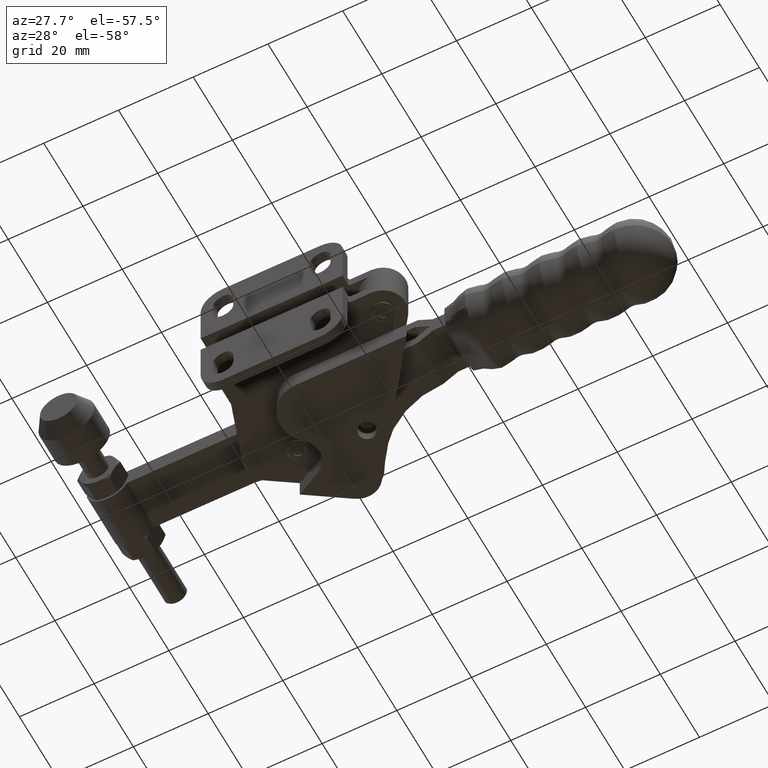
[diagram: clean part render]
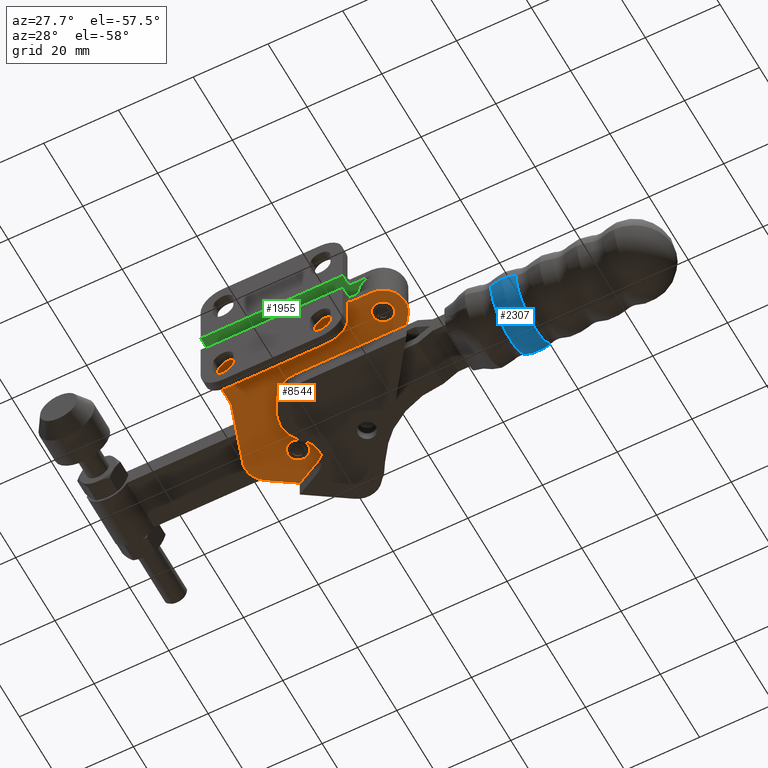
[diagram: same view with three faces highlighted in distinct colors, each labeled with its STEP entity id]
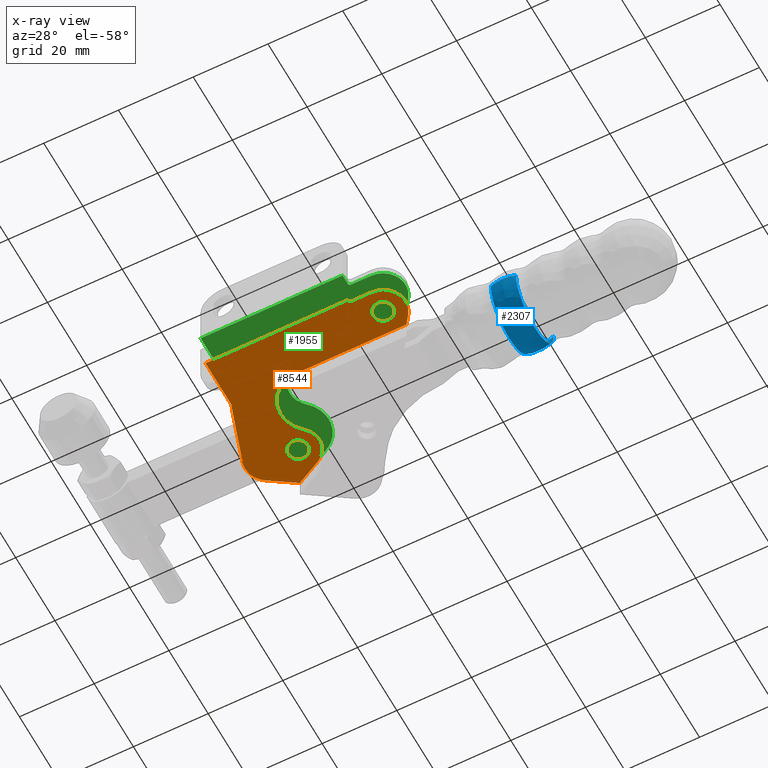
[diagram: x-ray of the same camera — body ghosted, the three highlighted faces saturated]
A machine part, auxiliary view with three faces highlighted in distinct colors.
The next image is the same camera in x-ray (body ghosted, the three faces saturated) — at least one of them is partly hidden behind the body in this view.
Their STEP definitions:

[orange] entity #8544 — the highlighted planar face has unit normal (0, 0, -1).
#67 = CARTESIAN_POINT ( 'NONE',  ( 11.89754065416079200, 29.88245614035053800, -5.000000000000434300 ) ) ;
#74 = ORIENTED_EDGE ( 'NONE', *, *, #1355, .F. ) ;
#231 = EDGE_CURVE ( 'NONE', #2138, #260, #9561, .T. ) ;
#260 = VERTEX_POINT ( 'NONE', #9148 ) ;
#295 = DIRECTION ( 'NONE',  ( 7.850945100192768800E-016, -1.000000000000000000, -4.740511339008573000E-016 ) ) ;
#398 = CIRCLE ( 'NONE', #3742, 2.750000000000000900 ) ;
#429 = AXIS2_PLACEMENT_3D ( 'NONE', #854, #7624, #5211 ) ;
#469 = VECTOR ( 'NONE', #953, 1000.000000000000100 ) ;
#564 = CARTESIAN_POINT ( 'NONE',  ( 37.99999999999975800, 2.499999999999669200, -5.000000000000447600 ) ) ;
#586 = DIRECTION ( 'NONE',  ( 1.000000000000000000, 8.163404592832033000E-016, 0.0000000000000000000 ) ) ;
#688 = DIRECTION ( 'NONE',  ( 0.0000000000000000000, 0.0000000000000000000, 1.000000000000000000 ) ) ;
#769 = CARTESIAN_POINT ( 'NONE',  ( -2.220446049250313100E-013, 15.49999999999968000, -5.000000000000441400 ) ) ;
#790 = EDGE_CURVE ( 'NONE', #5094, #9410, #8884, .T. ) ;
#818 = FACE_OUTER_BOUND ( 'NONE', #8178, .T. ) ;
#840 = CIRCLE ( 'NONE', #7817, 8.500000000000000000 ) ;
#854 = CARTESIAN_POINT ( 'NONE',  ( 0.4999999999997506400, 33.19999999999959100, -5.000000000000432500 ) ) ;
#953 = DIRECTION ( 'NONE',  ( 0.8902000381701521400, -0.4555698541846900900, -2.159593210316295600E-016 ) ) ;
#1090 = VERTEX_POINT ( 'NONE', #4436 ) ;
#1102 = VECTOR ( 'NONE', #10508, 1000.000000000000000 ) ;
#1185 = LINE ( 'NONE', #7086, #9616 ) ;
#1189 = CIRCLE ( 'NONE', #8030, 8.500000000000000000 ) ;
#1285 = ORIENTED_EDGE ( 'NONE', *, *, #6521, .T. ) ;
#1341 = VERTEX_POINT ( 'NONE', #67 ) ;
#1355 = EDGE_CURVE ( 'NONE', #3604, #5853, #6316, .T. ) ;
#1421 = VERTEX_POINT ( 'NONE', #4358 ) ;
#1472 = CIRCLE ( 'NONE', #5915, 5.999999999999984900 ) ;
#1488 = CARTESIAN_POINT ( 'NONE',  ( 38.49999999999973000, 2.699999999999619100, -5.000000000000447600 ) ) ;
#1516 = ORIENTED_EDGE ( 'NONE', *, *, #4561, .F. ) ;
#1604 = EDGE_LOOP ( 'NONE', ( #6942, #6828 ) ) ;
#1608 = CARTESIAN_POINT ( 'NONE',  ( 9.011296403790233000, 23.49999999999962700, -5.000000000000437900 ) ) ;
#1649 = DIRECTION ( 'NONE',  ( -4.588761509564181500E-021, -4.740511339008574900E-016, 1.000000000000000000 ) ) ;
#1717 = DIRECTION ( 'NONE',  ( 1.000000000000000000, 8.673617379884027600E-016, 0.0000000000000000000 ) ) ;
#1937 = CARTESIAN_POINT ( 'NONE',  ( 38.49999999999973000, 2.699999999999619100, -5.000000000000447600 ) ) ;
#1938 = VERTEX_POINT ( 'NONE', #769 ) ;
#2025 = VECTOR ( 'NONE', #5566, 1000.000000000000000 ) ;
#2136 = CIRCLE ( 'NONE', #429, 6.000000000000018700 ) ;
#2138 = VERTEX_POINT ( 'NONE', #5570 ) ;
#2152 = EDGE_CURVE ( 'NONE', #4291, #3604, #6932, .T. ) ;
#2154 = ORIENTED_EDGE ( 'NONE', *, *, #5866, .F. ) ;
#2202 = CARTESIAN_POINT ( 'NONE',  ( -2.220446049250313100E-013, 2.499999999999669200, -5.000000000000394400 ) ) ;
#2215 = ORIENTED_EDGE ( 'NONE', *, *, #790, .F. ) ;
#2269 = LINE ( 'NONE', #3444, #2025 ) ;
#2272 = DIRECTION ( 'NONE',  ( -4.588761509564181500E-021, -4.740511339008574900E-016, 1.000000000000000000 ) ) ;
#2455 = DIRECTION ( 'NONE',  ( 1.000000000000000000, 1.082252302640925000E-014, 4.588761514720927400E-021 ) ) ;
#2511 = DIRECTION ( 'NONE',  ( 4.588761509564181500E-021, 4.740511339008574900E-016, -1.000000000000000000 ) ) ;
#2692 = FACE_BOUND ( 'NONE', #1604, .T. ) ;
#2754 = DIRECTION ( 'NONE',  ( 1.000000000000000000, 7.295867469198080700E-016, 4.588761509936359200E-021 ) ) ;
#2836 = ORIENTED_EDGE ( 'NONE', *, *, #3773, .F. ) ;
#2863 = DIRECTION ( 'NONE',  ( -4.588761509564181500E-021, -4.740511339008574900E-016, 1.000000000000000000 ) ) ;
#2978 = EDGE_CURVE ( 'NONE', #1090, #6116, #3432, .T. ) ;
#3104 = DIRECTION ( 'NONE',  ( 0.0000000000000000000, 0.0000000000000000000, 1.000000000000000000 ) ) ;
#3171 = EDGE_CURVE ( 'NONE', #9052, #1421, #5524, .T. ) ;
#3209 = CIRCLE ( 'NONE', #7414, 6.000000000000018700 ) ;
#3363 = CARTESIAN_POINT ( 'NONE',  ( 17.51129640379023300, 14.99999999999968000, -5.000000000000442300 ) ) ;
#3432 = LINE ( 'NONE', #3619, #5648 ) ;
#3444 = CARTESIAN_POINT ( 'NONE',  ( 37.99999999999973000, 2.699999999999619100, -5.000000000000447600 ) ) ;
#3604 = VERTEX_POINT ( 'NONE', #10515 ) ;
#3619 = CARTESIAN_POINT ( 'NONE',  ( 6.530807365013019200, 44.27063185296642400, -5.000000000000428100 ) ) ;
#3661 = CARTESIAN_POINT ( 'NONE',  ( 8.099999999999745600, 34.19999999999959100, -5.000000000000432500 ) ) ;
#3742 = AXIS2_PLACEMENT_3D ( 'NONE', #10266, #5075, #5971 ) ;
#3773 = EDGE_CURVE ( 'NONE', #7846, #4291, #2269, .T. ) ;
#3829 = EDGE_CURVE ( 'NONE', #9573, #1938, #1185, .T. ) ;
#3898 = VERTEX_POINT ( 'NONE', #1608 ) ;
#4041 = CARTESIAN_POINT ( 'NONE',  ( 47.21114392090386500, 14.99999999999970900, -5.000000000000441400 ) ) ;
#4104 = EDGE_CURVE ( 'NONE', #260, #2138, #398, .T. ) ;
#4252 = VECTOR ( 'NONE', #9232, 999.9999999999998900 ) ;
#4291 = VERTEX_POINT ( 'NONE', #4566 ) ;
#4358 = CARTESIAN_POINT ( 'NONE',  ( 46.74999999999980100, 9.200000000000015300, -5.000000000000002700 ) ) ;
#4364 = DIRECTION ( 'NONE',  ( 0.0000000000000000000, 0.0000000000000000000, 1.000000000000000000 ) ) ;
#4398 = VECTOR ( 'NONE', #7955, 1000.000000000000000 ) ;
#4436 = CARTESIAN_POINT ( 'NONE',  ( 4.112246403578268400, 42.69999999999959800, -5.000000000000429000 ) ) ;
#4491 = DIRECTION ( 'NONE',  ( 1.000000000000000000, 1.206764157201251600E-015, 0.0000000000000000000 ) ) ;
#4534 = LINE ( 'NONE', #9941, #469 ) ;
#4561 = EDGE_CURVE ( 'NONE', #6116, #7093, #2136, .T. ) ;
#4566 = CARTESIAN_POINT ( 'NONE',  ( 37.99999999999973000, 2.699999999999619100, -5.000000000000447600 ) ) ;
#4664 = LINE ( 'NONE', #2202, #4398 ) ;
#4764 = CARTESIAN_POINT ( 'NONE',  ( 43.99999999999979400, 9.200000000000015300, -5.000000000000002700 ) ) ;
#4936 = CIRCLE ( 'NONE', #8604, 5.750000000000025800 ) ;
#5075 = DIRECTION ( 'NONE',  ( 0.0000000000000000000, 0.0000000000000000000, 1.000000000000000000 ) ) ;
#5080 = VERTEX_POINT ( 'NONE', #3363 ) ;
#5094 = VERTEX_POINT ( 'NONE', #7953 ) ;
#5115 = CARTESIAN_POINT ( 'NONE',  ( -5.200205006738595000, 31.32712443521823400, -5.000000000000434300 ) ) ;
#5184 = CARTESIAN_POINT ( 'NONE',  ( -2.220446049250313100E-013, 15.49999999999968000, -5.000000000000441400 ) ) ;
#5204 = VERTEX_POINT ( 'NONE', #8217 ) ;
#5210 = CARTESIAN_POINT ( 'NONE',  ( 41.24999999999979400, 9.200000000000015300, -5.000000000000002700 ) ) ;
#5211 = DIRECTION ( 'NONE',  ( 1.000000000000000000, 1.156482317317867800E-015, 0.0000000000000000000 ) ) ;
#5501 = DIRECTION ( 'NONE',  ( -4.588761509564181500E-021, -4.740511339008574900E-016, 1.000000000000000000 ) ) ;
#5524 = CIRCLE ( 'NONE', #7733, 2.750000000000002700 ) ;
#5566 = DIRECTION ( 'NONE',  ( -1.106493707964985300E-014, 1.000000000000000000, 4.740511339008573000E-016 ) ) ;
#5570 = CARTESIAN_POINT ( 'NONE',  ( 10.84999999999980200, 34.19999999999998200, -5.000000000000002700 ) ) ;
#5592 = DIRECTION ( 'NONE',  ( 1.000000000000000000, 0.0000000000000000000, 0.0000000000000000000 ) ) ;
#5648 = VECTOR ( 'NONE', #9548, 1000.000000000000100 ) ;
#5668 = DIRECTION ( 'NONE',  ( 1.000000000000000000, 0.0000000000000000000, 0.0000000000000000000 ) ) ;
#5782 = CARTESIAN_POINT ( 'NONE',  ( 43.99999999999975800, 3.199999999999703100, -5.000000000000446800 ) ) ;
#5853 = VERTEX_POINT ( 'NONE', #7600 ) ;
#5866 = EDGE_CURVE ( 'NONE', #1938, #5204, #9164, .T. ) ;
#5915 = AXIS2_PLACEMENT_3D ( 'NONE', #7778, #2863, #8573 ) ;
#5971 = DIRECTION ( 'NONE',  ( 1.000000000000000000, 0.0000000000000000000, 0.0000000000000000000 ) ) ;
#6013 = AXIS2_PLACEMENT_3D ( 'NONE', #1488, #2511, #1717 ) ;
#6023 = PLANE ( 'NONE',  #7001 ) ;
#6116 = VERTEX_POINT ( 'NONE', #7890 ) ;
#6141 = ORIENTED_EDGE ( 'NONE', *, *, #7915, .F. ) ;
#6146 = EDGE_CURVE ( 'NONE', #5204, #7846, #4664, .T. ) ;
#6307 = ORIENTED_EDGE ( 'NONE', *, *, #9496, .T. ) ;
#6316 = LINE ( 'NONE', #5782, #10411 ) ;
#6323 = VERTEX_POINT ( 'NONE', #6618 ) ;
#6380 = CARTESIAN_POINT ( 'NONE',  ( 8.099999999999802500, 34.19999999999998200, -5.000000000000002700 ) ) ;
#6519 = CARTESIAN_POINT ( 'NONE',  ( 17.51129640379023300, 23.49999999999963100, -5.000000000000437900 ) ) ;
#6521 = EDGE_CURVE ( 'NONE', #6323, #1341, #4936, .T. ) ;
#6618 = CARTESIAN_POINT ( 'NONE',  ( 10.71952666156170200, 39.31865021947800200, -5.000000000000430800 ) ) ;
#6828 = ORIENTED_EDGE ( 'NONE', *, *, #3171, .T. ) ;
#6883 = ORIENTED_EDGE ( 'NONE', *, *, #2978, .F. ) ;
#6932 = CIRCLE ( 'NONE', #6013, 0.5000000000000004400 ) ;
#6942 = ORIENTED_EDGE ( 'NONE', *, *, #9629, .T. ) ;
#6946 = ORIENTED_EDGE ( 'NONE', *, *, #10355, .F. ) ;
#6986 = VECTOR ( 'NONE', #295, 1000.000000000000000 ) ;
#7001 = AXIS2_PLACEMENT_3D ( 'NONE', #1937, #7669, #2754 ) ;
#7086 = CARTESIAN_POINT ( 'NONE',  ( -2.220446049250313100E-013, 15.49999999999968000, -5.000000000000441400 ) ) ;
#7093 = VERTEX_POINT ( 'NONE', #7719 ) ;
#7107 = ORIENTED_EDGE ( 'NONE', *, *, #7386, .T. ) ;
#7202 = CARTESIAN_POINT ( 'NONE',  ( 0.4999999999997506400, 33.19999999999959100, -5.000000000000432500 ) ) ;
#7323 = ORIENTED_EDGE ( 'NONE', *, *, #2152, .F. ) ;
#7369 = DIRECTION ( 'NONE',  ( 1.000000000000000000, 8.163404592832033000E-016, 0.0000000000000000000 ) ) ;
#7386 = EDGE_CURVE ( 'NONE', #3898, #5080, #840, .T. ) ;
#7414 = AXIS2_PLACEMENT_3D ( 'NONE', #7202, #2272, #8023 ) ;
#7495 = ORIENTED_EDGE ( 'NONE', *, *, #3829, .F. ) ;
#7600 = CARTESIAN_POINT ( 'NONE',  ( 43.99999999999975800, 3.199999999999703100, -5.000000000000446800 ) ) ;
#7623 = AXIS2_PLACEMENT_3D ( 'NONE', #9309, #4364, #10114 ) ;
#7624 = DIRECTION ( 'NONE',  ( -4.588761509564181500E-021, -4.740511339008574900E-016, 1.000000000000000000 ) ) ;
#7669 = DIRECTION ( 'NONE',  ( 4.588761509590497500E-021, 4.740511339008574900E-016, -1.000000000000000000 ) ) ;
#7719 = CARTESIAN_POINT ( 'NONE',  ( -5.500000000000267300, 33.19999999999958400, -5.000000000000432500 ) ) ;
#7733 = AXIS2_PLACEMENT_3D ( 'NONE', #4764, #3104, #5668 ) ;
#7778 = CARTESIAN_POINT ( 'NONE',  ( 43.99999999999973700, 9.199999999999708000, -5.000000000000445000 ) ) ;
#7817 = AXIS2_PLACEMENT_3D ( 'NONE', #6519, #1649, #7369 ) ;
#7846 = VERTEX_POINT ( 'NONE', #564 ) ;
#7860 = ORIENTED_EDGE ( 'NONE', *, *, #10562, .T. ) ;
#7890 = CARTESIAN_POINT ( 'NONE',  ( -2.767834210090441600, 38.23202340767215200, -5.000000000000430800 ) ) ;
#7915 = EDGE_CURVE ( 'NONE', #7093, #9573, #3209, .T. ) ;
#7953 = CARTESIAN_POINT ( 'NONE',  ( 48.86289560649423400, 12.71457626469174700, -5.000000000000443200 ) ) ;
#7955 = DIRECTION ( 'NONE',  ( 1.000000000000000000, 7.295867469198080700E-016, -1.403751908246038800E-015 ) ) ;
#8023 = DIRECTION ( 'NONE',  ( 1.000000000000000000, 1.156482317317867800E-015, 0.0000000000000000000 ) ) ;
#8030 = AXIS2_PLACEMENT_3D ( 'NONE', #10368, #5501, #586 ) ;
#8103 = ORIENTED_EDGE ( 'NONE', *, *, #9235, .T. ) ;
#8126 = CIRCLE ( 'NONE', #7623, 2.750000000000002700 ) ;
#8178 = EDGE_LOOP ( 'NONE', ( #2154, #7495, #6141, #1516, #6883, #6307, #1285, #8103, #7107, #7860, #2215, #6946, #74, #7323, #2836, #10256 ) ) ;
#8217 = CARTESIAN_POINT ( 'NONE',  ( -1.942890293094023900E-013, 2.499999999999669200, -5.000000000000447600 ) ) ;
#8411 = EDGE_LOOP ( 'NONE', ( #10159, #9447 ) ) ;
#8544 = ADVANCED_FACE ( 'NONE', ( #9240, #2692, #818 ), #6023, .T. ) ;
#8573 = DIRECTION ( 'NONE',  ( 1.000000000000000000, 8.673617379884057200E-016, 0.0000000000000000000 ) ) ;
#8604 = AXIS2_PLACEMENT_3D ( 'NONE', #3661, #9422, #4491 ) ;
#8884 = LINE ( 'NONE', #10010, #4252 ) ;
#9052 = VERTEX_POINT ( 'NONE', #5210 ) ;
#9148 = CARTESIAN_POINT ( 'NONE',  ( 5.349999999999800700, 34.19999999999998200, -5.000000000000002700 ) ) ;
#9149 = AXIS2_PLACEMENT_3D ( 'NONE', #6380, #688, #5592 ) ;
#9164 = LINE ( 'NONE', #5184, #6986 ) ;
#9232 = DIRECTION ( 'NONE',  ( -0.5857627107820163600, 0.8104826010824069900, 3.842075081246502300E-016 ) ) ;
#9235 = EDGE_CURVE ( 'NONE', #1341, #3898, #1189, .T. ) ;
#9240 = FACE_BOUND ( 'NONE', #8411, .T. ) ;
#9309 = CARTESIAN_POINT ( 'NONE',  ( 43.99999999999979400, 9.200000000000015300, -5.000000000000002700 ) ) ;
#9410 = VERTEX_POINT ( 'NONE', #4041 ) ;
#9422 = DIRECTION ( 'NONE',  ( 4.588761509564181500E-021, 4.740511339008574900E-016, -1.000000000000000000 ) ) ;
#9447 = ORIENTED_EDGE ( 'NONE', *, *, #4104, .T. ) ;
#9496 = EDGE_CURVE ( 'NONE', #1090, #6323, #4534, .T. ) ;
#9518 = LINE ( 'NONE', #9706, #1102 ) ;
#9548 = DIRECTION ( 'NONE',  ( -0.8386705679454243800, -0.5446390350150265300, -2.581906005747635100E-016 ) ) ;
#9561 = CIRCLE ( 'NONE', #9149, 2.750000000000000900 ) ;
#9573 = VERTEX_POINT ( 'NONE', #5115 ) ;
#9616 = VECTOR ( 'NONE', #10024, 999.9999999999998900 ) ;
#9629 = EDGE_CURVE ( 'NONE', #1421, #9052, #8126, .T. ) ;
#9706 = CARTESIAN_POINT ( 'NONE',  ( 17.51129640379023300, 14.99999999999968000, -5.000000000000442300 ) ) ;
#9941 = CARTESIAN_POINT ( 'NONE',  ( 4.112246403578212500, 42.69999999999959800, -5.000000000000429900 ) ) ;
#10010 = CARTESIAN_POINT ( 'NONE',  ( 45.40431083775151000, 17.49999999999970900, -5.000000000000440500 ) ) ;
#10024 = DIRECTION ( 'NONE',  ( 0.3121459274635710000, -0.9500341677897207200, -4.503633421220570100E-016 ) ) ;
#10114 = DIRECTION ( 'NONE',  ( 1.000000000000000000, 0.0000000000000000000, 0.0000000000000000000 ) ) ;
#10159 = ORIENTED_EDGE ( 'NONE', *, *, #231, .T. ) ;
#10256 = ORIENTED_EDGE ( 'NONE', *, *, #6146, .F. ) ;
#10266 = CARTESIAN_POINT ( 'NONE',  ( 8.099999999999802500, 34.19999999999998200, -5.000000000000002700 ) ) ;
#10355 = EDGE_CURVE ( 'NONE', #5853, #5094, #1472, .T. ) ;
#10368 = CARTESIAN_POINT ( 'NONE',  ( 17.51129640379023300, 23.49999999999963100, -5.000000000000437900 ) ) ;
#10411 = VECTOR ( 'NONE', #2455, 1000.000000000000000 ) ;
#10508 = DIRECTION ( 'NONE',  ( 1.000000000000000000, 7.295867469198080700E-016, 4.588761509936359200E-021 ) ) ;
#10515 = CARTESIAN_POINT ( 'NONE',  ( 38.49999999999973000, 3.199999999999620000, -5.000000000000446800 ) ) ;
#10562 = EDGE_CURVE ( 'NONE', #5080, #9410, #9518, .T. ) ;

[blue] entity #2307 — the highlighted spherical surface has radius 10.25 mm.
#444 = DIRECTION ( 'NONE',  ( -1.817109365087872700E-034, 7.887774916776290400E-018, 1.000000000000000000 ) ) ;
#830 = CARTESIAN_POINT ( 'NONE',  ( 71.75000000000004300, 27.29999999999964500, 5.127053695904832300E-017 ) ) ;
#1178 = VERTEX_POINT ( 'NONE', #3911 ) ;
#1229 = DIRECTION ( 'NONE',  ( 4.061791553506669500E-015, -1.000000000000000000, 7.887774916776290400E-018 ) ) ;
#1274 = VERTEX_POINT ( 'NONE', #4022 ) ;
#1405 = ORIENTED_EDGE ( 'NONE', *, *, #2710, .T. ) ;
#1591 = DIRECTION ( 'NONE',  ( 1.003205292497038400E-014, -1.000000000000000000, 7.887774916776290400E-018 ) ) ;
#1603 = AXIS2_PLACEMENT_3D ( 'NONE', #3372, #9117, #4178 ) ;
#1830 = DIRECTION ( 'NONE',  ( -1.000000000000000000, -1.049748105022090500E-014, 8.262005678075809800E-032 ) ) ;
#2026 = DIRECTION ( 'NONE',  ( 1.817109365087897700E-034, -7.887774916776290400E-018, -1.000000000000000000 ) ) ;
#2307 = ADVANCED_FACE ( 'NONE', ( #5418 ), #8700, .T. ) ;
#2618 = CIRCLE ( 'NONE', #1603, 9.683413293494755400 ) ;
#2684 = CIRCLE ( 'NONE', #5419, 10.25000000000000200 ) ;
#2710 = EDGE_CURVE ( 'NONE', #7421, #1274, #2684, .T. ) ;
#2947 = CARTESIAN_POINT ( 'NONE',  ( 75.11065573770494600, 27.29999999999967700, 5.127053695904804600E-017 ) ) ;
#3372 = CARTESIAN_POINT ( 'NONE',  ( 68.38934426229512600, 27.29999999999960600, 5.127053695904860100E-017 ) ) ;
#3571 = VERTEX_POINT ( 'NONE', #6308 ) ;
#3897 = EDGE_CURVE ( 'NONE', #3571, #7421, #5013, .T. ) ;
#3911 = CARTESIAN_POINT ( 'NONE',  ( 68.38934426229502600, 36.98341329349435800, 1.160766061943769100E-015 ) ) ;
#4022 = CARTESIAN_POINT ( 'NONE',  ( 68.38934426229522500, 17.61658670650484700, 1.276511214442544700E-016 ) ) ;
#4178 = DIRECTION ( 'NONE',  ( -1.003205292497038700E-014, 1.000000000000000000, -7.887774916776291900E-018 ) ) ;
#4195 = EDGE_LOOP ( 'NONE', ( #8235, #9877, #1405, #9439 ) ) ;
#4443 = EDGE_CURVE ( 'NONE', #3571, #1178, #7803, .T. ) ;
#4602 = DIRECTION ( 'NONE',  ( 0.0000000000000000000, -1.000000000000000000, -1.145769049979590400E-016 ) ) ;
#4720 = AXIS2_PLACEMENT_3D ( 'NONE', #2947, #1830, #1591 ) ;
#4939 = CARTESIAN_POINT ( 'NONE',  ( 75.11065573770504500, 17.61658670650492200, 1.276511214442540700E-016 ) ) ;
#5013 = CIRCLE ( 'NONE', #4720, 9.683413293494759000 ) ;
#5020 = AXIS2_PLACEMENT_3D ( 'NONE', #6482, #6800, #4602 ) ;
#5418 = FACE_OUTER_BOUND ( 'NONE', #4195, .T. ) ;
#5419 = AXIS2_PLACEMENT_3D ( 'NONE', #6328, #2026, #6191 ) ;
#6191 = DIRECTION ( 'NONE',  ( 0.0000000000000000000, 1.000000000000000000, -7.887774916776290400E-018 ) ) ;
#6308 = CARTESIAN_POINT ( 'NONE',  ( 75.11065573770486000, 36.98341329349443600, 1.160766061943772600E-015 ) ) ;
#6328 = CARTESIAN_POINT ( 'NONE',  ( 71.75000000000004300, 27.29999999999964500, 5.127053695904832300E-017 ) ) ;
#6346 = AXIS2_PLACEMENT_3D ( 'NONE', #830, #444, #1229 ) ;
#6482 = CARTESIAN_POINT ( 'NONE',  ( 71.75000000000004300, 27.29999999999964500, 5.127053695904832300E-017 ) ) ;
#6800 = DIRECTION ( 'NONE',  ( 4.302226566104022700E-031, -1.145769049979590400E-016, 1.000000000000000000 ) ) ;
#7421 = VERTEX_POINT ( 'NONE', #4939 ) ;
#7803 = CIRCLE ( 'NONE', #5020, 10.25000000000000200 ) ;
#8235 = ORIENTED_EDGE ( 'NONE', *, *, #4443, .F. ) ;
#8700 = SPHERICAL_SURFACE ( 'NONE', #6346, 10.25000000000000200 ) ;
#9117 = DIRECTION ( 'NONE',  ( 1.000000000000000000, 1.049748105022090300E-014, -8.262005678075808700E-032 ) ) ;
#9439 = ORIENTED_EDGE ( 'NONE', *, *, #9485, .T. ) ;
#9485 = EDGE_CURVE ( 'NONE', #1274, #1178, #2618, .T. ) ;
#9877 = ORIENTED_EDGE ( 'NONE', *, *, #3897, .T. ) ;

[green] entity #1955 — the highlighted planar face has unit normal (0, 0, 1).
#26 = EDGE_CURVE ( 'NONE', #3379, #2783, #4824, .T. ) ;
#42 = DIRECTION ( 'NONE',  ( 0.0000000000000000000, -1.000000000000000000, 0.0000000000000000000 ) ) ;
#223 = DIRECTION ( 'NONE',  ( 1.000000000000000000, 0.0000000000000000000, 0.0000000000000000000 ) ) ;
#264 = DIRECTION ( 'NONE',  ( 1.000000000000000000, 0.0000000000000000000, 0.0000000000000000000 ) ) ;
#307 = FACE_OUTER_BOUND ( 'NONE', #8585, .T. ) ;
#320 = DIRECTION ( 'NONE',  ( 1.000000000000000000, 0.0000000000000000000, 0.0000000000000000000 ) ) ;
#331 = CIRCLE ( 'NONE', #10323, 6.000000000000018700 ) ;
#393 = DIRECTION ( 'NONE',  ( 1.000000000000000000, 0.0000000000000000000, 0.0000000000000000000 ) ) ;
#430 = DIRECTION ( 'NONE',  ( 1.000000000000000000, 0.0000000000000000000, 0.0000000000000000000 ) ) ;
#565 = EDGE_CURVE ( 'NONE', #3540, #2335, #10184, .T. ) ;
#581 = CARTESIAN_POINT ( 'NONE',  ( 0.0000000000000000000, 0.0000000000000000000, 2.500000000000000400 ) ) ;
#609 = PLANE ( 'NONE',  #9505 ) ;
#626 = CARTESIAN_POINT ( 'NONE',  ( 0.0000000000000000000, 15.50000000000004100, 2.500000000000000400 ) ) ;
#687 = CIRCLE ( 'NONE', #9261, 1.500000000000001300 ) ;
#808 = VECTOR ( 'NONE', #2303, 1000.000000000000100 ) ;
#845 = AXIS2_PLACEMENT_3D ( 'NONE', #2617, #8340, #3428 ) ;
#870 = VERTEX_POINT ( 'NONE', #9373 ) ;
#1065 = CIRCLE ( 'NONE', #4219, 1.500000000000001300 ) ;
#1215 = EDGE_LOOP ( 'NONE', ( #4330, #3309 ) ) ;
#1314 = VERTEX_POINT ( 'NONE', #8986 ) ;
#1321 = CIRCLE ( 'NONE', #3448, 5.999999999999984900 ) ;
#1324 = EDGE_CURVE ( 'NONE', #4013, #1839, #331, .T. ) ;
#1366 = AXIS2_PLACEMENT_3D ( 'NONE', #9994, #5106, #223 ) ;
#1399 = AXIS2_PLACEMENT_3D ( 'NONE', #2075, #7826, #2913 ) ;
#1403 = ORIENTED_EDGE ( 'NONE', *, *, #5820, .F. ) ;
#1411 = DIRECTION ( 'NONE',  ( 1.000000000000000000, 0.0000000000000000000, 0.0000000000000000000 ) ) ;
#1499 = CARTESIAN_POINT ( 'NONE',  ( 8.099999999999967700, 34.19999999999998200, 2.500000000000000400 ) ) ;
#1542 = VECTOR ( 'NONE', #1411, 1000.000000000000000 ) ;
#1626 = CARTESIAN_POINT ( 'NONE',  ( 43.99999999999996400, 9.200000000000015300, 2.500000000000000400 ) ) ;
#1752 = CIRCLE ( 'NONE', #1366, 6.000000000000018700 ) ;
#1761 = ORIENTED_EDGE ( 'NONE', *, *, #9170, .F. ) ;
#1828 = EDGE_CURVE ( 'NONE', #3740, #4670, #1321, .T. ) ;
#1839 = VERTEX_POINT ( 'NONE', #6804 ) ;
#1857 = AXIS2_PLACEMENT_3D ( 'NONE', #1499, #7460, #5233 ) ;
#1901 = ORIENTED_EDGE ( 'NONE', *, *, #7563, .T. ) ;
#1927 = CARTESIAN_POINT ( 'NONE',  ( 11.51129640379045300, 23.49999999999999300, 2.500000000000000400 ) ) ;
#1955 = ADVANCED_FACE ( 'NONE', ( #307, #8706, #7071 ), #609, .F. ) ;
#2010 = ORIENTED_EDGE ( 'NONE', *, *, #5689, .F. ) ;
#2037 = DIRECTION ( 'NONE',  ( 1.000000000000000000, 1.009293658750136300E-014, -0.0000000000000000000 ) ) ;
#2055 = DIRECTION ( 'NONE',  ( -0.5857627107820105900, 0.8104826010824111000, 0.0000000000000000000 ) ) ;
#2075 = CARTESIAN_POINT ( 'NONE',  ( 38.49999999999992200, 2.699999999999980200, 2.500000000000000400 ) ) ;
#2096 = ORIENTED_EDGE ( 'NONE', *, *, #8520, .T. ) ;
#2128 = LINE ( 'NONE', #9960, #10583 ) ;
#2164 = VERTEX_POINT ( 'NONE', #3145 ) ;
#2237 = ORIENTED_EDGE ( 'NONE', *, *, #5991, .F. ) ;
#2303 = DIRECTION ( 'NONE',  ( -0.8386705679454203900, -0.5446390350150327500, -0.0000000000000000000 ) ) ;
#2335 = VERTEX_POINT ( 'NONE', #4760 ) ;
#2406 = DIRECTION ( 'NONE',  ( 1.000000000000000000, 0.0000000000000000000, 0.0000000000000000000 ) ) ;
#2477 = CIRCLE ( 'NONE', #1399, 0.5000000000000004400 ) ;
#2493 = VECTOR ( 'NONE', #42, 1000.000000000000000 ) ;
#2617 = CARTESIAN_POINT ( 'NONE',  ( 17.51129640379045300, 23.49999999999999300, 2.500000000000000400 ) ) ;
#2635 = CARTESIAN_POINT ( 'NONE',  ( 43.99999999999995700, 3.200000000000036100, 2.500000000000000400 ) ) ;
#2783 = VERTEX_POINT ( 'NONE', #626 ) ;
#2913 = DIRECTION ( 'NONE',  ( 1.000000000000000000, 0.0000000000000000000, 0.0000000000000000000 ) ) ;
#2935 = EDGE_CURVE ( 'NONE', #7233, #3024, #5888, .T. ) ;
#2944 = LINE ( 'NONE', #5620, #808 ) ;
#2950 = VECTOR ( 'NONE', #5174, 1000.000000000000000 ) ;
#3024 = VERTEX_POINT ( 'NONE', #5049 ) ;
#3145 = CARTESIAN_POINT ( 'NONE',  ( 45.40431083775173000, 17.49999999999998900, 2.500000000000000400 ) ) ;
#3215 = CARTESIAN_POINT ( 'NONE',  ( 45.49999999999996400, 9.200000000000015300, 2.500000000000000400 ) ) ;
#3229 = EDGE_CURVE ( 'NONE', #870, #4013, #2944, .T. ) ;
#3230 = ORIENTED_EDGE ( 'NONE', *, *, #4953, .F. ) ;
#3309 = ORIENTED_EDGE ( 'NONE', *, *, #565, .T. ) ;
#3379 = VERTEX_POINT ( 'NONE', #9601 ) ;
#3393 = ORIENTED_EDGE ( 'NONE', *, *, #1828, .F. ) ;
#3428 = DIRECTION ( 'NONE',  ( 1.000000000000000000, 0.0000000000000000000, 0.0000000000000000000 ) ) ;
#3448 = AXIS2_PLACEMENT_3D ( 'NONE', #8431, #3545, #9288 ) ;
#3506 = CARTESIAN_POINT ( 'NONE',  ( 17.51129640379045300, 17.49999999999998900, 2.500000000000000400 ) ) ;
#3540 = VERTEX_POINT ( 'NONE', #3215 ) ;
#3545 = DIRECTION ( 'NONE',  ( 0.0000000000000000000, 0.0000000000000000000, 1.000000000000000000 ) ) ;
#3740 = VERTEX_POINT ( 'NONE', #2635 ) ;
#3741 = AXIS2_PLACEMENT_3D ( 'NONE', #10037, #5144, #264 ) ;
#3965 = ORIENTED_EDGE ( 'NONE', *, *, #5806, .T. ) ;
#3981 = CARTESIAN_POINT ( 'NONE',  ( 38.49999999999992200, 3.199999999999980600, 2.500000000000000400 ) ) ;
#4013 = VERTEX_POINT ( 'NONE', #8757 ) ;
#4070 = DIRECTION ( 'NONE',  ( 0.3121459274635701700, -0.9500341677897208300, -0.0000000000000000000 ) ) ;
#4092 = DIRECTION ( 'NONE',  ( 0.0000000000000000000, 0.0000000000000000000, 1.000000000000000000 ) ) ;
#4219 = AXIS2_PLACEMENT_3D ( 'NONE', #10098, #5218, #320 ) ;
#4330 = ORIENTED_EDGE ( 'NONE', *, *, #7646, .T. ) ;
#4550 = VECTOR ( 'NONE', #4070, 1000.000000000000100 ) ;
#4670 = VERTEX_POINT ( 'NONE', #6487 ) ;
#4682 = CARTESIAN_POINT ( 'NONE',  ( 18.29999999999998300, 44.75945515891569200, 2.500000000000000400 ) ) ;
#4760 = CARTESIAN_POINT ( 'NONE',  ( 42.49999999999996400, 9.200000000000015300, 2.500000000000000400 ) ) ;
#4808 = EDGE_CURVE ( 'NONE', #10308, #7976, #8536, .T. ) ;
#4824 = LINE ( 'NONE', #9727, #4550 ) ;
#4898 = EDGE_CURVE ( 'NONE', #5942, #7012, #6754, .T. ) ;
#4953 = EDGE_CURVE ( 'NONE', #3024, #7384, #2128, .T. ) ;
#4970 = ORIENTED_EDGE ( 'NONE', *, *, #8503, .T. ) ;
#5049 = CARTESIAN_POINT ( 'NONE',  ( 37.99999999999995000, 0.0000000000000000000, 2.500000000000000400 ) ) ;
#5106 = DIRECTION ( 'NONE',  ( 0.0000000000000000000, 0.0000000000000000000, 1.000000000000000000 ) ) ;
#5144 = DIRECTION ( 'NONE',  ( -0.0000000000000000000, -0.0000000000000000000, -1.000000000000000000 ) ) ;
#5174 = DIRECTION ( 'NONE',  ( 1.000000000000000000, 0.0000000000000000000, 0.0000000000000000000 ) ) ;
#5218 = DIRECTION ( 'NONE',  ( 0.0000000000000000000, 0.0000000000000000000, 1.000000000000000000 ) ) ;
#5231 = ORIENTED_EDGE ( 'NONE', *, *, #4898, .T. ) ;
#5233 = DIRECTION ( 'NONE',  ( 1.000000000000000000, 0.0000000000000000000, 0.0000000000000000000 ) ) ;
#5301 = DIRECTION ( 'NONE',  ( 0.0000000000000000000, 0.0000000000000000000, 1.000000000000000000 ) ) ;
#5478 = DIRECTION ( 'NONE',  ( 0.0000000000000000000, 0.0000000000000000000, 1.000000000000000000 ) ) ;
#5620 = CARTESIAN_POINT ( 'NONE',  ( 4.112246403578434500, 42.69999999999998900, 2.500000000000000400 ) ) ;
#5645 = CARTESIAN_POINT ( 'NONE',  ( 9.599999999999969400, 34.19999999999998200, 2.500000000000000400 ) ) ;
#5689 = EDGE_CURVE ( 'NONE', #2783, #7233, #6865, .T. ) ;
#5806 = EDGE_CURVE ( 'NONE', #7012, #1314, #10192, .T. ) ;
#5820 = EDGE_CURVE ( 'NONE', #1839, #3379, #1752, .T. ) ;
#5867 = ORIENTED_EDGE ( 'NONE', *, *, #3229, .F. ) ;
#5888 = LINE ( 'NONE', #8463, #1542 ) ;
#5942 = VERTEX_POINT ( 'NONE', #8512 ) ;
#5959 = ORIENTED_EDGE ( 'NONE', *, *, #1324, .F. ) ;
#5991 = EDGE_CURVE ( 'NONE', #8033, #3740, #10054, .T. ) ;
#6037 = VECTOR ( 'NONE', #2055, 1000.000000000000000 ) ;
#6404 = VECTOR ( 'NONE', #7393, 1000.000000000000000 ) ;
#6487 = CARTESIAN_POINT ( 'NONE',  ( 48.86289560649442600, 12.71457626469205100, 2.500000000000000400 ) ) ;
#6546 = CARTESIAN_POINT ( 'NONE',  ( 6.530807365013268800, 44.27063185296678700, 2.500000000000000400 ) ) ;
#6754 = CIRCLE ( 'NONE', #7349, 6.000000000000001800 ) ;
#6804 = CARTESIAN_POINT ( 'NONE',  ( -5.500000000000046200, 33.19999999999998200, 2.500000000000000400 ) ) ;
#6865 = LINE ( 'NONE', #8176, #2493 ) ;
#7012 = VERTEX_POINT ( 'NONE', #1927 ) ;
#7071 = FACE_BOUND ( 'NONE', #10102, .T. ) ;
#7190 = ORIENTED_EDGE ( 'NONE', *, *, #2935, .F. ) ;
#7233 = VERTEX_POINT ( 'NONE', #581 ) ;
#7340 = DIRECTION ( 'NONE',  ( 0.0000000000000000000, 0.0000000000000000000, 1.000000000000000000 ) ) ;
#7349 = AXIS2_PLACEMENT_3D ( 'NONE', #9581, #8269, #430 ) ;
#7384 = VERTEX_POINT ( 'NONE', #8101 ) ;
#7393 = DIRECTION ( 'NONE',  ( 0.8902000381701517000, -0.4555698541846907600, 0.0000000000000000000 ) ) ;
#7460 = DIRECTION ( 'NONE',  ( 0.0000000000000000000, 0.0000000000000000000, 1.000000000000000000 ) ) ;
#7563 = EDGE_CURVE ( 'NONE', #8408, #5942, #7969, .T. ) ;
#7568 = LINE ( 'NONE', #3506, #2950 ) ;
#7646 = EDGE_CURVE ( 'NONE', #2335, #3540, #687, .T. ) ;
#7647 = DIRECTION ( 'NONE',  ( -1.027984282060337700E-014, 1.000000000000000000, -0.0000000000000000000 ) ) ;
#7724 = ORIENTED_EDGE ( 'NONE', *, *, #8321, .T. ) ;
#7770 = ORIENTED_EDGE ( 'NONE', *, *, #26, .F. ) ;
#7786 = CARTESIAN_POINT ( 'NONE',  ( 43.99999999999995700, 3.200000000000036100, 2.500000000000000400 ) ) ;
#7826 = DIRECTION ( 'NONE',  ( -0.0000000000000000000, -0.0000000000000000000, -1.000000000000000000 ) ) ;
#7867 = ORIENTED_EDGE ( 'NONE', *, *, #9784, .F. ) ;
#7886 = VECTOR ( 'NONE', #2037, 1000.000000000000000 ) ;
#7969 = CIRCLE ( 'NONE', #3741, 8.250000000000000000 ) ;
#7976 = VERTEX_POINT ( 'NONE', #5645 ) ;
#8017 = DIRECTION ( 'NONE',  ( 1.000000000000000000, 0.0000000000000000000, -0.0000000000000000000 ) ) ;
#8033 = VERTEX_POINT ( 'NONE', #3981 ) ;
#8101 = CARTESIAN_POINT ( 'NONE',  ( 37.99999999999992200, 2.699999999999980200, 2.500000000000000400 ) ) ;
#8176 = CARTESIAN_POINT ( 'NONE',  ( 0.0000000000000000000, 15.50000000000004100, 2.500000000000000400 ) ) ;
#8180 = AXIS2_PLACEMENT_3D ( 'NONE', #1626, #7340, #2406 ) ;
#8201 = LINE ( 'NONE', #8566, #6037 ) ;
#8269 = DIRECTION ( 'NONE',  ( 0.0000000000000000000, 0.0000000000000000000, 1.000000000000000000 ) ) ;
#8321 = EDGE_CURVE ( 'NONE', #870, #8408, #8574, .T. ) ;
#8340 = DIRECTION ( 'NONE',  ( 0.0000000000000000000, 0.0000000000000000000, 1.000000000000000000 ) ) ;
#8408 = VERTEX_POINT ( 'NONE', #9137 ) ;
#8431 = CARTESIAN_POINT ( 'NONE',  ( 43.99999999999995700, 9.200000000000013500, 2.500000000000000400 ) ) ;
#8463 = CARTESIAN_POINT ( 'NONE',  ( 0.0000000000000000000, 0.0000000000000000000, 2.500000000000000400 ) ) ;
#8503 = EDGE_CURVE ( 'NONE', #1314, #2164, #7568, .T. ) ;
#8512 = CARTESIAN_POINT ( 'NONE',  ( 13.54864528640498000, 28.00526315789472800, 2.500000000000000400 ) ) ;
#8520 = EDGE_CURVE ( 'NONE', #7976, #10308, #1065, .T. ) ;
#8536 = CIRCLE ( 'NONE', #1857, 1.500000000000001300 ) ;
#8566 = CARTESIAN_POINT ( 'NONE',  ( 47.21114392090405700, 14.99999999999998600, 2.500000000000000400 ) ) ;
#8574 = LINE ( 'NONE', #6546, #6404 ) ;
#8585 = EDGE_LOOP ( 'NONE', ( #7724, #1901, #5231, #3965, #4970, #1761, #3393, #2237, #7867, #3230, #7190, #2010, #7770, #1403, #5959, #5867 ) ) ;
#8706 = FACE_BOUND ( 'NONE', #1215, .T. ) ;
#8757 = CARTESIAN_POINT ( 'NONE',  ( -2.767834210090219600, 38.23202340767253600, 2.500000000000000400 ) ) ;
#8986 = CARTESIAN_POINT ( 'NONE',  ( 17.51129640379045300, 17.49999999999998900, 2.500000000000000400 ) ) ;
#9029 = CARTESIAN_POINT ( 'NONE',  ( 0.4999999999999726900, 33.19999999999998200, 2.500000000000000400 ) ) ;
#9137 = CARTESIAN_POINT ( 'NONE',  ( 11.85845129702367600, 41.54415031490374600, 2.500000000000000400 ) ) ;
#9170 = EDGE_CURVE ( 'NONE', #4670, #2164, #8201, .T. ) ;
#9261 = AXIS2_PLACEMENT_3D ( 'NONE', #10180, #5301, #393 ) ;
#9288 = DIRECTION ( 'NONE',  ( 1.000000000000000000, 0.0000000000000000000, 0.0000000000000000000 ) ) ;
#9356 = CARTESIAN_POINT ( 'NONE',  ( 6.599999999999966800, 34.19999999999998200, 2.500000000000000400 ) ) ;
#9373 = CARTESIAN_POINT ( 'NONE',  ( 6.530807365013268800, 44.27063185296678700, 2.500000000000000400 ) ) ;
#9505 = AXIS2_PLACEMENT_3D ( 'NONE', #4682, #5478, #8017 ) ;
#9581 = CARTESIAN_POINT ( 'NONE',  ( 17.51129640379045300, 23.49999999999999300, 2.500000000000000400 ) ) ;
#9601 = CARTESIAN_POINT ( 'NONE',  ( -5.200205006738372900, 31.32712443521859700, 2.500000000000000400 ) ) ;
#9727 = CARTESIAN_POINT ( 'NONE',  ( 0.0000000000000000000, 15.50000000000004100, 2.500000000000000400 ) ) ;
#9784 = EDGE_CURVE ( 'NONE', #7384, #8033, #2477, .T. ) ;
#9859 = DIRECTION ( 'NONE',  ( 1.000000000000000000, 0.0000000000000000000, 0.0000000000000000000 ) ) ;
#9960 = CARTESIAN_POINT ( 'NONE',  ( 37.99999999999992200, 2.699999999999980200, 2.500000000000000400 ) ) ;
#9994 = CARTESIAN_POINT ( 'NONE',  ( 0.4999999999999726900, 33.19999999999998200, 2.500000000000000400 ) ) ;
#10037 = CARTESIAN_POINT ( 'NONE',  ( 8.099999999999967700, 34.19999999999998200, 2.500000000000000400 ) ) ;
#10054 = LINE ( 'NONE', #7786, #7886 ) ;
#10098 = CARTESIAN_POINT ( 'NONE',  ( 8.099999999999967700, 34.19999999999998200, 2.500000000000000400 ) ) ;
#10102 = EDGE_LOOP ( 'NONE', ( #10338, #2096 ) ) ;
#10180 = CARTESIAN_POINT ( 'NONE',  ( 43.99999999999996400, 9.200000000000015300, 2.500000000000000400 ) ) ;
#10184 = CIRCLE ( 'NONE', #8180, 1.500000000000001300 ) ;
#10192 = CIRCLE ( 'NONE', #845, 6.000000000000001800 ) ;
#10308 = VERTEX_POINT ( 'NONE', #9356 ) ;
#10323 = AXIS2_PLACEMENT_3D ( 'NONE', #9029, #4092, #9859 ) ;
#10338 = ORIENTED_EDGE ( 'NONE', *, *, #4808, .T. ) ;
#10583 = VECTOR ( 'NONE', #7647, 1000.000000000000000 ) ;